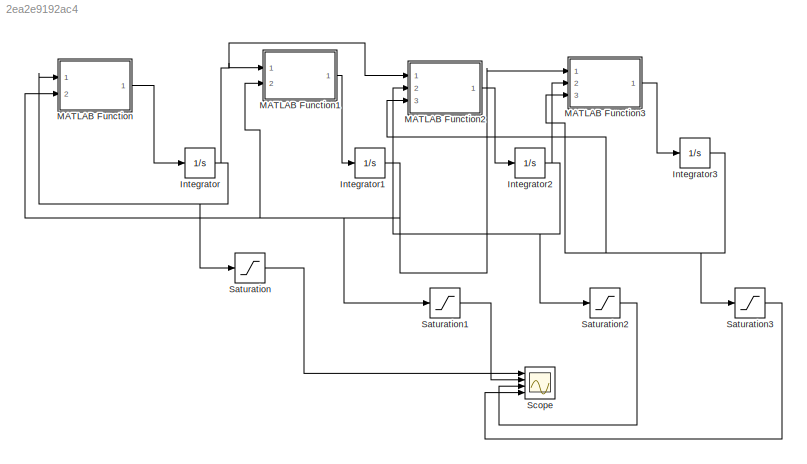
MODEL slx_2ea2e9192ac4
KIND model
CONFIG AbsTol = auto
CONFIG EnableMultiTasking = off
CONFIG FixedStep = auto
CONFIG MaxStep = auto
CONFIG MinStep = auto
CONFIG RelTol = 1e-3
CONFIG SampleTimeConstraint = Unconstrained
CONFIG Solver = VariableStepAuto
CONFIG SolverName = VariableStepAuto
CONFIG StartTime = 0.0
CONFIG StopTime = 10
BLOCK [Integrator] Integrator
  Ports = [1, 1]
BLOCK [Integrator] Integrator1
  Ports = [1, 1]
BLOCK [Integrator] Integrator2
  Ports = [1, 1]
BLOCK [Integrator] Integrator3
  Ports = [1, 1]
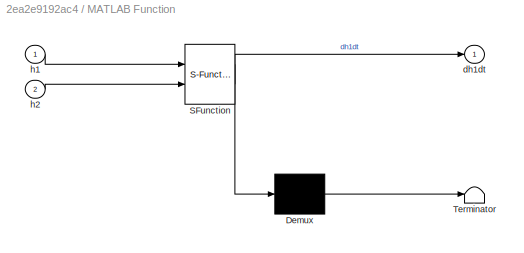
BLOCK [SubSystem] MATLAB Function
  ErrorFcn = Stateflow.Translate.translate
  PermitHierarchicalResolution = ExplicitOnly
  Ports = [2, 1]
  RequestExecContextInheritance = off
  SFBlockType = MATLAB Function
  TreatAsAtomicUnit = on
  Variant = off
BLOCK [Demux] MATLAB Function/ Demux 
  Outputs = 1
  Ports = [1, 1]
BLOCK [S-Function] MATLAB Function/ SFunction 
  EnableBusSupport = on
  FunctionName = sf_sfun
  PortCounts = [2 2]
  Ports = [2, 2]
  SFcnIsStateOwnerBlock = off
  SFunctionDeploymentMode = off
  Tag = Stateflow S-Function secondcw 2
BLOCK [Terminator] MATLAB Function/ Terminator 
BLOCK [Outport] MATLAB Function/dh1dt
  IconDisplay = Port number
BLOCK [Inport] MATLAB Function/h1
  IconDisplay = Port number
BLOCK [Inport] MATLAB Function/h2
  IconDisplay = Port number
  Port = 2
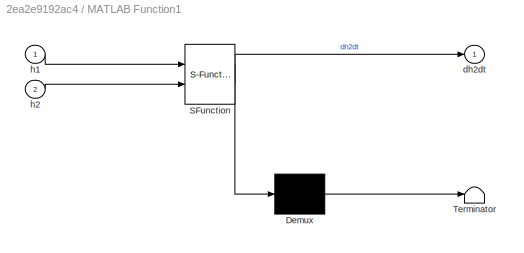
BLOCK [SubSystem] MATLAB Function1
  ErrorFcn = Stateflow.Translate.translate
  PermitHierarchicalResolution = ExplicitOnly
  Ports = [2, 1]
  RequestExecContextInheritance = off
  SFBlockType = MATLAB Function
  TreatAsAtomicUnit = on
  Variant = off
BLOCK [Demux] MATLAB Function1/ Demux 
  Outputs = 1
  Ports = [1, 1]
BLOCK [S-Function] MATLAB Function1/ SFunction 
  EnableBusSupport = on
  FunctionName = sf_sfun
  PortCounts = [2 2]
  Ports = [2, 2]
  SFcnIsStateOwnerBlock = off
  SFunctionDeploymentMode = off
  Tag = Stateflow S-Function secondcw 1
BLOCK [Terminator] MATLAB Function1/ Terminator 
BLOCK [Outport] MATLAB Function1/dh2dt
  IconDisplay = Port number
BLOCK [Inport] MATLAB Function1/h1
  IconDisplay = Port number
BLOCK [Inport] MATLAB Function1/h2
  IconDisplay = Port number
  Port = 2
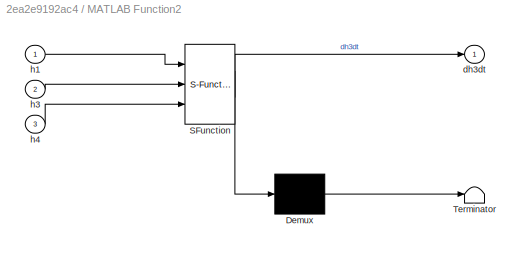
BLOCK [SubSystem] MATLAB Function2
  ErrorFcn = Stateflow.Translate.translate
  PermitHierarchicalResolution = ExplicitOnly
  Ports = [3, 1]
  RequestExecContextInheritance = off
  SFBlockType = MATLAB Function
  TreatAsAtomicUnit = on
  Variant = off
BLOCK [Demux] MATLAB Function2/ Demux 
  Outputs = 1
  Ports = [1, 1]
BLOCK [S-Function] MATLAB Function2/ SFunction 
  EnableBusSupport = on
  FunctionName = sf_sfun
  PortCounts = [3 2]
  Ports = [3, 2]
  SFcnIsStateOwnerBlock = off
  SFunctionDeploymentMode = off
  Tag = Stateflow S-Function secondcw 3
BLOCK [Terminator] MATLAB Function2/ Terminator 
BLOCK [Outport] MATLAB Function2/dh3dt
  IconDisplay = Port number
BLOCK [Inport] MATLAB Function2/h1
  IconDisplay = Port number
BLOCK [Inport] MATLAB Function2/h3
  IconDisplay = Port number
  Port = 2
BLOCK [Inport] MATLAB Function2/h4
  IconDisplay = Port number
  Port = 3
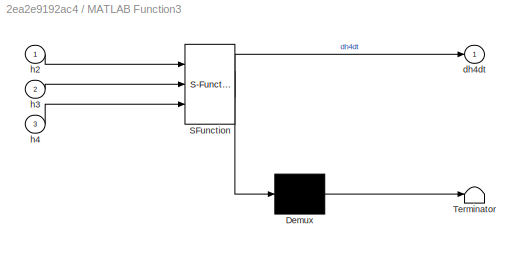
BLOCK [SubSystem] MATLAB Function3
  ErrorFcn = Stateflow.Translate.translate
  PermitHierarchicalResolution = ExplicitOnly
  Ports = [3, 1]
  RequestExecContextInheritance = off
  SFBlockType = MATLAB Function
  TreatAsAtomicUnit = on
  Variant = off
BLOCK [Demux] MATLAB Function3/ Demux 
  Outputs = 1
  Ports = [1, 1]
BLOCK [S-Function] MATLAB Function3/ SFunction 
  EnableBusSupport = on
  FunctionName = sf_sfun
  PortCounts = [3 2]
  Ports = [3, 2]
  SFcnIsStateOwnerBlock = off
  SFunctionDeploymentMode = off
  Tag = Stateflow S-Function secondcw 4
BLOCK [Terminator] MATLAB Function3/ Terminator 
BLOCK [Outport] MATLAB Function3/dh4dt
  IconDisplay = Port number
BLOCK [Inport] MATLAB Function3/h2
  IconDisplay = Port number
BLOCK [Inport] MATLAB Function3/h3
  IconDisplay = Port number
  Port = 2
BLOCK [Inport] MATLAB Function3/h4
  IconDisplay = Port number
  Port = 3
BLOCK [Saturate] Saturation
  InputPortMap = u0
  LowerLimit = 0
  Ports = [1, 1]
  UpperLimit = 6
BLOCK [Saturate] Saturation1
  InputPortMap = u0
  LowerLimit = 0
  Ports = [1, 1]
  UpperLimit = 6
BLOCK [Saturate] Saturation2
  InputPortMap = u0
  LowerLimit = 0
  Ports = [1, 1]
  UpperLimit = 6
BLOCK [Saturate] Saturation3
  InputPortMap = u0
  LowerLimit = 0
  Ports = [1, 1]
  UpperLimit = 6
BLOCK [Scope] Scope
  NumInputPorts = 4
  Ports = [4]
  ScopeSpecificationString = Simulink.scopes.TimeScopeBlockCfg('CurrentConfiguration', extmgr.ConfigurationSet(extmgr.Configuration('Core','General UI',true),extmgr.Configuration('Core','Source UI',true),extmgr.Configuration('Sources','WiredSimulink',true),extmgr.Configuration('Visuals','Time Domain',true,'SerializedDisplays',{struct('MinYLimReal','-0.22553','MaxYLimReal','6.75','YLabelReal','','MinYLimMag','0.00000','MaxYLim...<+1430ch>
NET Integrator1:1 -> MATLAB Function1:2, MATLAB Function3:1, MATLAB Function:2, Saturation1:1
NET Integrator2:1 -> MATLAB Function2:2, MATLAB Function3:2, Saturation2:1
NET Integrator3:1 -> MATLAB Function2:3, MATLAB Function3:3, Saturation3:1
NET Integrator:1 -> MATLAB Function1:1, MATLAB Function2:1, MATLAB Function:1, Saturation:1
LINE MATLAB Function1:1 -> Integrator1:1
LINE MATLAB Function2:1 -> Integrator2:1
LINE MATLAB Function3:1 -> Integrator3:1
LINE MATLAB Function:1 -> Integrator:1
LINE Saturation1:1 -> Scope:2
LINE Saturation2:1 -> Scope:3
LINE Saturation3:1 -> Scope:4
LINE Saturation:1 -> Scope:1
note: NET lines group one-source signal fan-out (src -> all destinations, sorted); 1:1 wires keep LINE
CHART MATLAB Function1 states=1 transitions=1
  STATE_LABEL 'eML_blk_kernel()'
  STATE_LABEL 'SCRIPT:\nfunction dh2dt = fcn(h1,h2)\nA=pi*.566^2/4;\nq2=10;\nq1h= 2.5*(h1-h2);\nq2v=5*h2;\n\ndh2dt=(q2+q1h-q2v)/A;\n'
CHART MATLAB Function states=1 transitions=1
  STATE_LABEL 'eML_blk_kernel()'
  STATE_LABEL 'SCRIPT:\nfunction dh1dt = fcn(h1,h2)\nA=pi*.566^2/4;\nq1=15;\nq1h= 2.5*(h1-h2);\nq1v=5*h1;\n\ndh1dt=(q1-q1h-q1v)/A;\n'
CHART MATLAB Function2 states=1 transitions=1
  STATE_LABEL 'eML_blk_kernel()'
  STATE_LABEL 'SCRIPT:\nfunction dh3dt = fcn(h1,h3,h4)\nA=pi*.566^2/4;\n\nq3h= 2.5*(h3-h4);\nq1v=5*h1;\n\ndh3dt=(q1v-q3h)/A;\n'
CHART MATLAB Function3 states=1 transitions=1
  STATE_LABEL 'eML_blk_kernel()'
  STATE_LABEL 'SCRIPT:\nfunction dh4dt = fcn(h2,h3,h4)\nA=pi*.566^2/4;\n\nq2v=5*h2;\nq4h=2.5*h4;\nq3h= 2.5*(h3-h4);\ndh4dt=(q2v+q3h-q4h)/A;\n'
